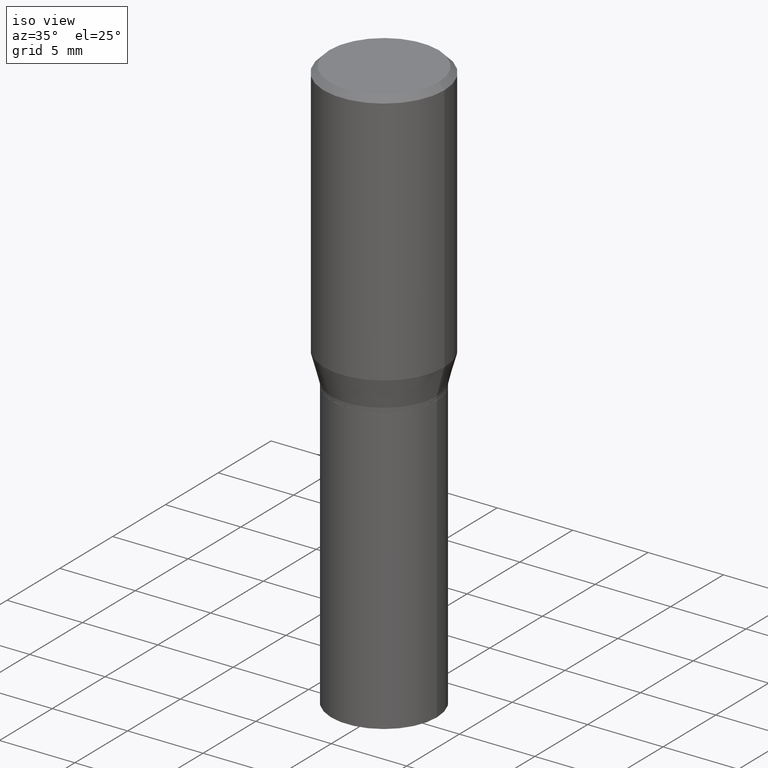
[diagram: clean part render]
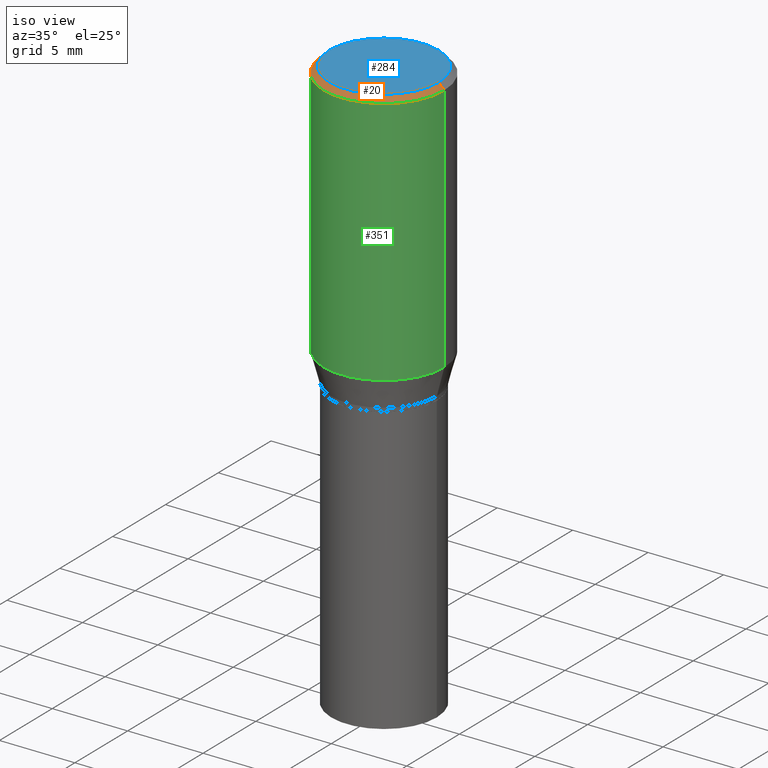
[diagram: same view with three faces highlighted in distinct colors, each labeled with its STEP entity id]
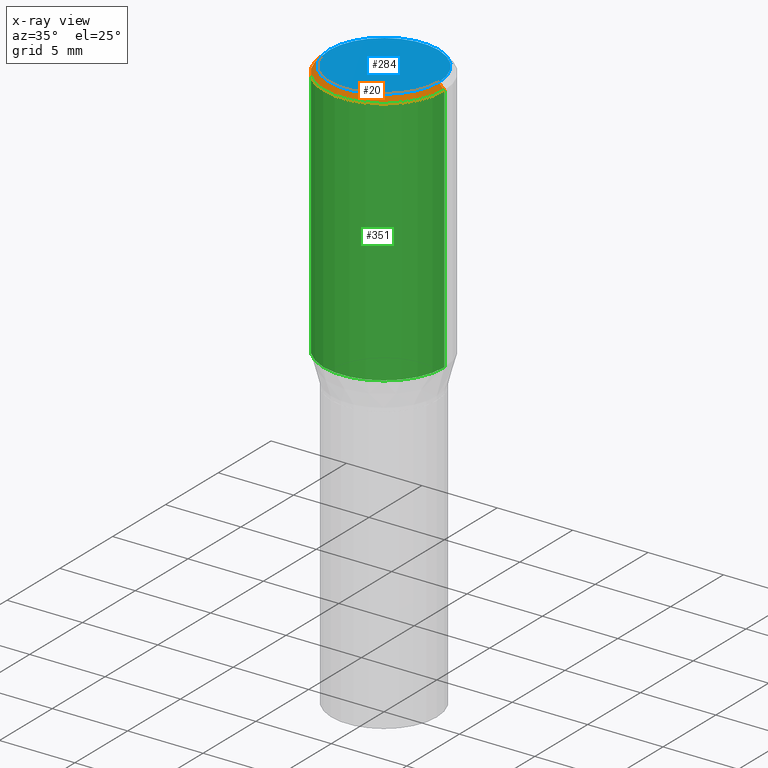
[diagram: x-ray of the same camera — body ghosted, the three highlighted faces saturated]
A machine part, iso view with three faces highlighted in distinct colors.
The next image is the same camera in x-ray (body ghosted, the three faces saturated) — at least one of them is partly hidden behind the body in this view.
Their STEP definitions:

[orange] entity #20 — the highlighted conical surface has half-angle 45 deg.
#4 = VERTEX_POINT ( 'NONE', #419 ) ;
#19 = CARTESIAN_POINT ( 'NONE',  ( 5.413510571379637089E-45, -7.729058366967027209E-31, -2.213690298435891099E-16 ) ) ;
#20 = ADVANCED_FACE ( 'NONE', ( #393 ), #272, .T. ) ;
#37 = EDGE_CURVE ( 'NONE', #195, #4, #193, .T. ) ;
#62 = DIRECTION ( 'NONE',  ( -2.445468806185136597E-29, 3.491481338843145583E-15, 1.000000000000000000 ) ) ;
#71 = ORIENTED_EDGE ( 'NONE', *, *, #37, .T. ) ;
#72 = EDGE_LOOP ( 'NONE', ( #327, #350, #79, #71 ) ) ;
#79 = ORIENTED_EDGE ( 'NONE', *, *, #266, .T. ) ;
#80 = DIRECTION ( 'NONE',  ( -0.7071067811865526798, 2.468850131082310309E-15, -0.7071067811865424657 ) ) ;
#81 = CIRCLE ( 'NONE', #237, 0.1424999999999999878 ) ;
#105 = CARTESIAN_POINT ( 'NONE',  ( -0.1575000000000000011, -7.407157829009734663E-17, -0.01499999999999999944 ) ) ;
#123 = DIRECTION ( 'NONE',  ( -1.000000000000000000, 6.982962677686265922E-15, 0.000000000000000000 ) ) ;
#133 = VERTEX_POINT ( 'NONE', #299 ) ;
#152 = VECTOR ( 'NONE', #80, 39.37007874015748143 ) ;
#155 = DIRECTION ( 'NONE',  ( 2.445468806185136597E-29, -3.491481338843145583E-15, -1.000000000000000000 ) ) ;
#172 = LINE ( 'NONE', #333, #216 ) ;
#193 = CIRCLE ( 'NONE', #383, 0.1575000000000000011 ) ;
#195 = VERTEX_POINT ( 'NONE', #105 ) ;
#216 = VECTOR ( 'NONE', #283, 39.37007874015748143 ) ;
#237 = AXIS2_PLACEMENT_3D ( 'NONE', #19, #62, #338 ) ;
#259 = VERTEX_POINT ( 'NONE', #405 ) ;
#266 = EDGE_CURVE ( 'NONE', #259, #195, #289, .T. ) ;
#272 = CONICAL_SURFACE ( 'NONE', #282, 0.1575000000000000011, 0.7853981633974554954 ) ;
#282 = AXIS2_PLACEMENT_3D ( 'NONE', #388, #155, #123 ) ;
#283 = DIRECTION ( 'NONE',  ( 0.7071067811865526798, -7.319954787623273400E-15, -0.7071067811865424657 ) ) ;
#287 = CARTESIAN_POINT ( 'NONE',  ( -0.1575000000000000011, 1.047444401652939809E-15, -0.01499999999999999944 ) ) ;
#289 = LINE ( 'NONE', #287, #152 ) ;
#293 = EDGE_CURVE ( 'NONE', #133, #4, #172, .T. ) ;
#299 = CARTESIAN_POINT ( 'NONE',  ( 0.1424999999999999878, -1.055260809707053708E-15, -2.213690298435819608E-16 ) ) ;
#307 = DIRECTION ( 'NONE',  ( 1.000000000000000000, -6.982962677686265922E-15, 0.000000000000000000 ) ) ;
#327 = ORIENTED_EDGE ( 'NONE', *, *, #293, .F. ) ;
#333 = CARTESIAN_POINT ( 'NONE',  ( 0.1575000000000000011, -1.132900654731663450E-15, -0.01499999999999999944 ) ) ;
#338 = DIRECTION ( 'NONE',  ( 1.000000000000000000, -6.982962677686266711E-15, 4.874020801377837404E-29 ) ) ;
#350 = ORIENTED_EDGE ( 'NONE', *, *, #454, .F. ) ;
#354 = DIRECTION ( 'NONE',  ( -2.445468806185136597E-29, 3.491481338843145583E-15, 1.000000000000000000 ) ) ;
#383 = AXIS2_PLACEMENT_3D ( 'NONE', #426, #354, #307 ) ;
#388 = CARTESIAN_POINT ( 'NONE',  ( 3.668203209277705088E-31, -5.237222008264718399E-17, -0.01499999999999999944 ) ) ;
#393 = FACE_OUTER_BOUND ( 'NONE', #72, .T. ) ;
#405 = CARTESIAN_POINT ( 'NONE',  ( -0.1424999999999999878, 1.021258291611616073E-15, -2.213690298435961603E-16 ) ) ;
#419 = CARTESIAN_POINT ( 'NONE',  ( 0.1575000000000000011, -1.152188841818234165E-15, -0.01499999999999999944 ) ) ;
#426 = CARTESIAN_POINT ( 'NONE',  ( 3.668203209277705088E-31, -5.237222008264718399E-17, -0.01499999999999999944 ) ) ;
#454 = EDGE_CURVE ( 'NONE', #259, #133, #81, .T. ) ;

[blue] entity #284 — the highlighted planar face has unit normal (0, -0, -1).
#10 = EDGE_LOOP ( 'NONE', ( #368, #25 ) ) ;
#15 = CIRCLE ( 'NONE', #233, 0.1424999999999999878 ) ;
#19 = CARTESIAN_POINT ( 'NONE',  ( 5.413510571379637089E-45, -7.729058366967027209E-31, -2.213690298435891099E-16 ) ) ;
#25 = ORIENTED_EDGE ( 'NONE', *, *, #371, .T. ) ;
#62 = DIRECTION ( 'NONE',  ( -2.445468806185136597E-29, 3.491481338843145583E-15, 1.000000000000000000 ) ) ;
#81 = CIRCLE ( 'NONE', #237, 0.1424999999999999878 ) ;
#86 = DIRECTION ( 'NONE',  ( 1.000000000000000000, -6.982962677686266711E-15, 4.874020801377837404E-29 ) ) ;
#133 = VERTEX_POINT ( 'NONE', #299 ) ;
#136 = FACE_OUTER_BOUND ( 'NONE', #10, .T. ) ;
#209 = CARTESIAN_POINT ( 'NONE',  ( 9.950721815702929274E-16, 0.1424999999999999878, -6.082206057069428675E-16 ) ) ;
#221 = CARTESIAN_POINT ( 'NONE',  ( 5.413510571379637089E-45, -7.729058366967027209E-31, -2.213690298435891099E-16 ) ) ;
#233 = AXIS2_PLACEMENT_3D ( 'NONE', #221, #334, #86 ) ;
#237 = AXIS2_PLACEMENT_3D ( 'NONE', #19, #62, #338 ) ;
#259 = VERTEX_POINT ( 'NONE', #405 ) ;
#284 = ADVANCED_FACE ( 'NONE', ( #136 ), #328, .F. ) ;
#299 = CARTESIAN_POINT ( 'NONE',  ( 0.1424999999999999878, -1.055260809707053708E-15, -2.213690298435819608E-16 ) ) ;
#328 = PLANE ( 'NONE',  #434 ) ;
#334 = DIRECTION ( 'NONE',  ( -2.445468806185136597E-29, 3.491481338843145583E-15, 1.000000000000000000 ) ) ;
#338 = DIRECTION ( 'NONE',  ( 1.000000000000000000, -6.982962677686266711E-15, 4.874020801377837404E-29 ) ) ;
#368 = ORIENTED_EDGE ( 'NONE', *, *, #454, .T. ) ;
#369 = DIRECTION ( 'NONE',  ( -1.000000000000000000, 6.982962677686265922E-15, -4.876176775795935793E-29 ) ) ;
#371 = EDGE_CURVE ( 'NONE', #133, #259, #15, .T. ) ;
#405 = CARTESIAN_POINT ( 'NONE',  ( -0.1424999999999999878, 1.021258291611616073E-15, -2.213690298435961603E-16 ) ) ;
#434 = AXIS2_PLACEMENT_3D ( 'NONE', #209, #446, #369 ) ;
#446 = DIRECTION ( 'NONE',  ( 2.438088387897960049E-29, -3.491481338843145188E-15, -1.000000000000000000 ) ) ;
#454 = EDGE_CURVE ( 'NONE', #259, #133, #81, .T. ) ;

[green] entity #351 — the highlighted cylindrical surface (partial cylindrical patch) has radius 4.0005 mm, axis along (-0, 0, 1).
#4 = VERTEX_POINT ( 'NONE', #419 ) ;
#37 = EDGE_CURVE ( 'NONE', #195, #4, #193, .T. ) ;
#42 = VERTEX_POINT ( 'NONE', #435 ) ;
#48 = DIRECTION ( 'NONE',  ( -2.445468806185136597E-29, 3.491481338843145583E-15, 1.000000000000000000 ) ) ;
#58 = ORIENTED_EDGE ( 'NONE', *, *, #228, .T. ) ;
#76 = DIRECTION ( 'NONE',  ( -2.445468806185136877E-29, 3.491481338843145188E-15, 1.000000000000000000 ) ) ;
#100 = VERTEX_POINT ( 'NONE', #178 ) ;
#105 = CARTESIAN_POINT ( 'NONE',  ( -0.1575000000000000011, -7.407157829009734663E-17, -0.01499999999999999944 ) ) ;
#107 = LINE ( 'NONE', #204, #288 ) ;
#108 = VECTOR ( 'NONE', #142, 39.37007874015748143 ) ;
#127 = EDGE_CURVE ( 'NONE', #42, #100, #309, .T. ) ;
#142 = DIRECTION ( 'NONE',  ( -2.445468806185136877E-29, 3.491481338843145188E-15, 1.000000000000000000 ) ) ;
#147 = DIRECTION ( 'NONE',  ( 1.000000000000000000, -6.982962677686267499E-15, 4.876176775795935232E-29 ) ) ;
#162 = ORIENTED_EDGE ( 'NONE', *, *, #127, .T. ) ;
#176 = EDGE_CURVE ( 'NONE', #42, #195, #360, .T. ) ;
#178 = CARTESIAN_POINT ( 'NONE',  ( 0.1575000000000000289, -3.433797175877450400E-15, -0.6684785990908935771 ) ) ;
#185 = DIRECTION ( 'NONE',  ( -2.445468806185136597E-29, 3.491481338843145583E-15, 1.000000000000000000 ) ) ;
#193 = CIRCLE ( 'NONE', #383, 0.1575000000000000011 ) ;
#195 = VERTEX_POINT ( 'NONE', #105 ) ;
#204 = CARTESIAN_POINT ( 'NONE',  ( 0.1575000000000000289, -1.099816621735587283E-15, 7.679978421878599434E-30 ) ) ;
#228 = EDGE_CURVE ( 'NONE', #100, #4, #107, .T. ) ;
#260 = CARTESIAN_POINT ( 'NONE',  ( 0.000000000000000000, 0.000000000000000000, 0.000000000000000000 ) ) ;
#288 = VECTOR ( 'NONE', #76, 39.37007874015748143 ) ;
#307 = DIRECTION ( 'NONE',  ( 1.000000000000000000, -6.982962677686265922E-15, 0.000000000000000000 ) ) ;
#309 = CIRCLE ( 'NONE', #332, 0.1575000000000000289 ) ;
#326 = DIRECTION ( 'NONE',  ( 1.000000000000000000, -6.982962677686267499E-15, 0.000000000000000000 ) ) ;
#332 = AXIS2_PLACEMENT_3D ( 'NONE', #363, #48, #326 ) ;
#351 = ADVANCED_FACE ( 'NONE', ( #413 ), #455, .T. ) ;
#354 = DIRECTION ( 'NONE',  ( -2.445468806185136597E-29, 3.491481338843145583E-15, 1.000000000000000000 ) ) ;
#356 = AXIS2_PLACEMENT_3D ( 'NONE', #260, #185, #147 ) ;
#360 = LINE ( 'NONE', #365, #108 ) ;
#363 = CARTESIAN_POINT ( 'NONE',  ( 1.634743561679119835E-29, -2.333980554141863708E-15, -0.6684785990908935771 ) ) ;
#365 = CARTESIAN_POINT ( 'NONE',  ( -0.1575000000000000289, 1.119104808822157998E-15, -7.747322767151478386E-30 ) ) ;
#383 = AXIS2_PLACEMENT_3D ( 'NONE', #426, #354, #307 ) ;
#387 = ORIENTED_EDGE ( 'NONE', *, *, #176, .F. ) ;
#413 = FACE_OUTER_BOUND ( 'NONE', #431, .T. ) ;
#414 = ORIENTED_EDGE ( 'NONE', *, *, #37, .F. ) ;
#419 = CARTESIAN_POINT ( 'NONE',  ( 0.1575000000000000011, -1.152188841818234165E-15, -0.01499999999999999944 ) ) ;
#426 = CARTESIAN_POINT ( 'NONE',  ( 3.668203209277705088E-31, -5.237222008264718399E-17, -0.01499999999999999944 ) ) ;
#431 = EDGE_LOOP ( 'NONE', ( #387, #162, #58, #414 ) ) ;
#435 = CARTESIAN_POINT ( 'NONE',  ( -0.1575000000000000289, -1.214875745319705316E-15, -0.6684785990908935771 ) ) ;
#455 = CYLINDRICAL_SURFACE ( 'NONE', #356, 0.1575000000000000289 ) ;